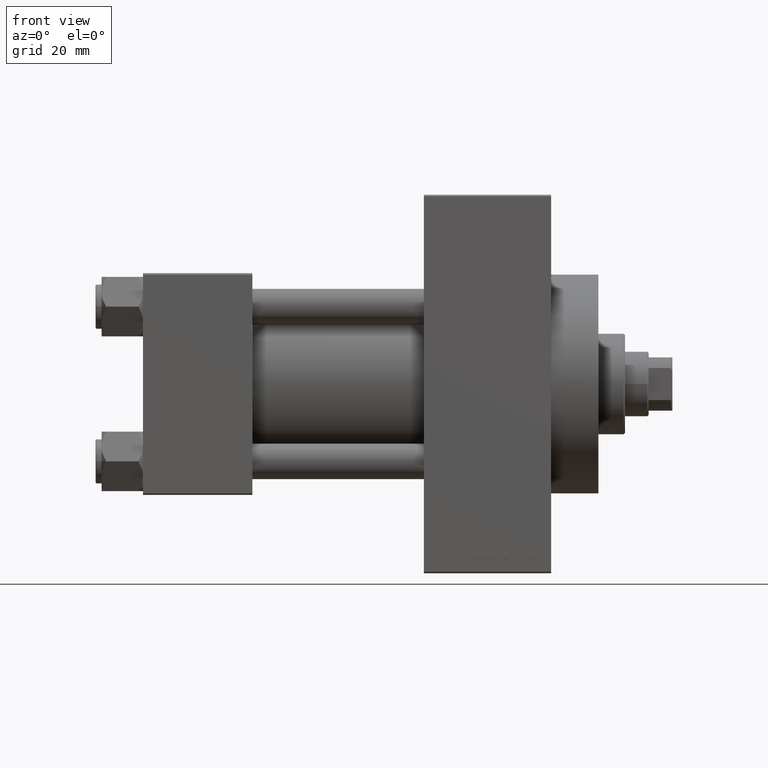
[diagram: clean part render]
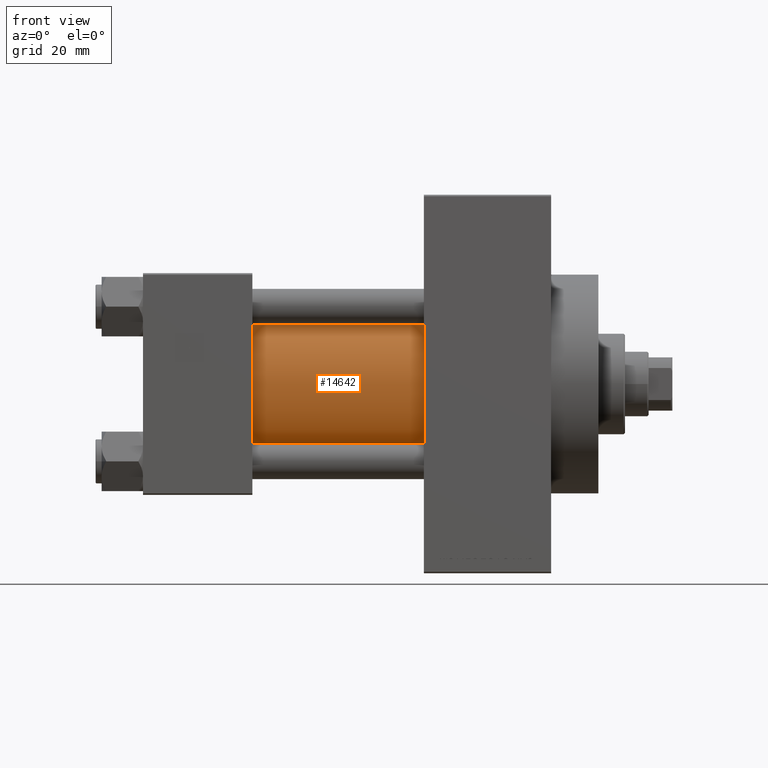
[diagram: same view with one face highlighted and labeled with its STEP entity id]
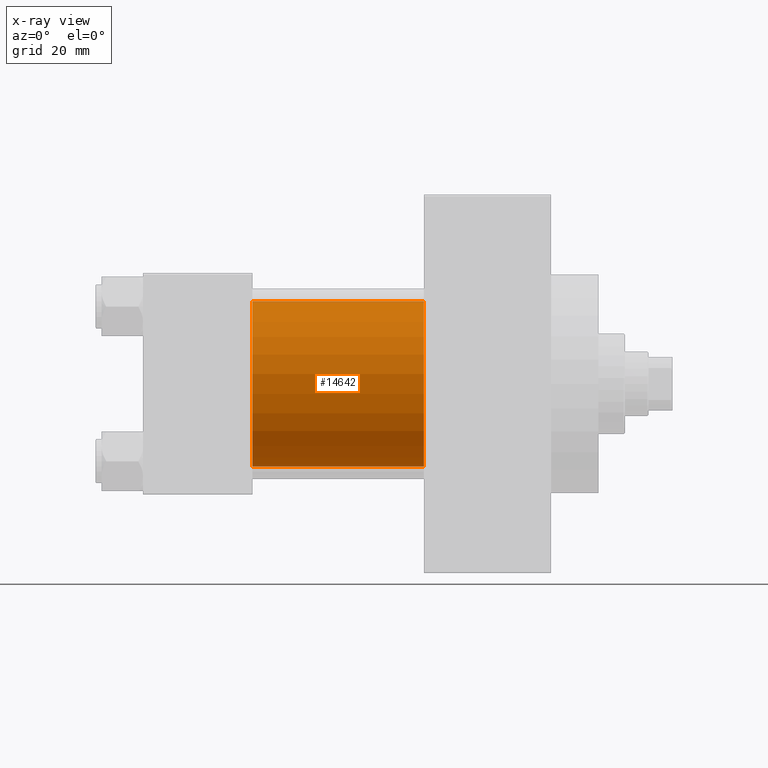
[diagram: x-ray of the same camera — body ghosted, the highlighted face saturated]
A machine part, front view. The second image highlights one B-rep face of the part: STEP entity #14642.
The next image is the same camera in x-ray: the body ghosted, the highlighted face saturated — about 2% of this face is hidden behind the body in this view.
In plain terms, the highlighted cylindrical surface (partial cylindrical patch) has radius 28 mm, axis along (-1, -0, -0).
Its self-contained STEP definition (entity closure, byte-faithful):
#1518 = VECTOR ( 'NONE', #32446, 1000.000000000000000 ) ;
#2583 = DIRECTION ( 'NONE',  ( 0.000000000000000000, 0.000000000000000000, 1.000000000000000000 ) ) ;
#3598 = CARTESIAN_POINT ( 'NONE',  ( 95.00000000000000000, -2.602085213965210642E-15, 28.00000000000000000 ) ) ;
#5141 = CARTESIAN_POINT ( 'NONE',  ( 37.00000000000000000, -2.602085213965210642E-15, 28.00000000000000000 ) ) ;
#5536 = ORIENTED_EDGE ( 'NONE', *, *, #17524, .T. ) ;
#5766 = CARTESIAN_POINT ( 'NONE',  ( 95.00000000000000000, 8.269258236473776482E-16, -28.00000000000000000 ) ) ;
#8774 = VERTEX_POINT ( 'NONE', #5141 ) ;
#8817 = ORIENTED_EDGE ( 'NONE', *, *, #19058, .F. ) ;
#10856 = AXIS2_PLACEMENT_3D ( 'NONE', #25806, #44737, #28568 ) ;
#11160 = EDGE_LOOP ( 'NONE', ( #8817, #35934, #25402, #5536 ) ) ;
#13360 = CIRCLE ( 'NONE', #41215, 28.00000000000000000 ) ;
#13930 = EDGE_CURVE ( 'NONE', #28604, #38442, #18845, .T. ) ;
#14642 = ADVANCED_FACE ( 'NONE', ( #17298 ), #48193, .T. ) ;
#16549 = VERTEX_POINT ( 'NONE', #35242 ) ;
#16683 = VECTOR ( 'NONE', #33052, 1000.000000000000000 ) ;
#17298 = FACE_OUTER_BOUND ( 'NONE', #11160, .T. ) ;
#17524 = EDGE_CURVE ( 'NONE', #8774, #16549, #13360, .T. ) ;
#18129 = DIRECTION ( 'NONE',  ( 0.000000000000000000, 0.000000000000000000, 1.000000000000000000 ) ) ;
#18372 = DIRECTION ( 'NONE',  ( 1.000000000000000000, -0.000000000000000000, 0.000000000000000000 ) ) ;
#18845 = CIRCLE ( 'NONE', #10856, 28.00000000000000000 ) ;
#19058 = EDGE_CURVE ( 'NONE', #38442, #16549, #21227, .T. ) ;
#21227 = LINE ( 'NONE', #5766, #1518 ) ;
#25402 = ORIENTED_EDGE ( 'NONE', *, *, #48313, .T. ) ;
#25806 = CARTESIAN_POINT ( 'NONE',  ( 95.00000000000000000, -2.602085213965210642E-15, 0.000000000000000000 ) ) ;
#28568 = DIRECTION ( 'NONE',  ( 0.000000000000000000, 0.000000000000000000, -1.000000000000000000 ) ) ;
#28604 = VERTEX_POINT ( 'NONE', #3598 ) ;
#29265 = DIRECTION ( 'NONE',  ( -1.000000000000000000, -0.000000000000000000, -0.000000000000000000 ) ) ;
#32446 = DIRECTION ( 'NONE',  ( -1.000000000000000000, -0.000000000000000000, -0.000000000000000000 ) ) ;
#33052 = DIRECTION ( 'NONE',  ( -1.000000000000000000, -0.000000000000000000, -0.000000000000000000 ) ) ;
#35242 = CARTESIAN_POINT ( 'NONE',  ( 37.00000000000000000, 8.269258236473776482E-16, -28.00000000000000000 ) ) ;
#35934 = ORIENTED_EDGE ( 'NONE', *, *, #13930, .F. ) ;
#37319 = CARTESIAN_POINT ( 'NONE',  ( 37.00000000000000000, -2.602085213965210642E-15, 0.000000000000000000 ) ) ;
#37615 = CARTESIAN_POINT ( 'NONE',  ( 95.00000000000000000, 8.269258236473776482E-16, -28.00000000000000000 ) ) ;
#38442 = VERTEX_POINT ( 'NONE', #37615 ) ;
#40268 = LINE ( 'NONE', #48239, #16683 ) ;
#40712 = CARTESIAN_POINT ( 'NONE',  ( 95.00000000000000000, -2.602085213965210642E-15, 0.000000000000000000 ) ) ;
#41135 = AXIS2_PLACEMENT_3D ( 'NONE', #40712, #29265, #2583 ) ;
#41215 = AXIS2_PLACEMENT_3D ( 'NONE', #37319, #18372, #18129 ) ;
#44737 = DIRECTION ( 'NONE',  ( 1.000000000000000000, 0.000000000000000000, 0.000000000000000000 ) ) ;
#48193 = CYLINDRICAL_SURFACE ( 'NONE', #41135, 28.00000000000000000 ) ;
#48239 = CARTESIAN_POINT ( 'NONE',  ( 95.00000000000000000, -2.602085213965210642E-15, 28.00000000000000000 ) ) ;
#48313 = EDGE_CURVE ( 'NONE', #28604, #8774, #40268, .T. ) ;